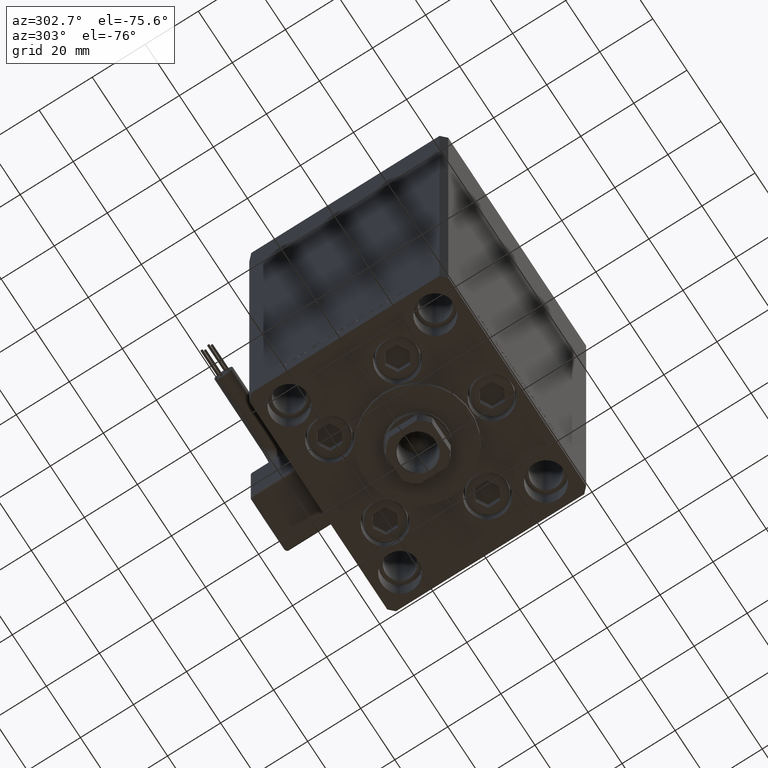
[diagram: clean part render]
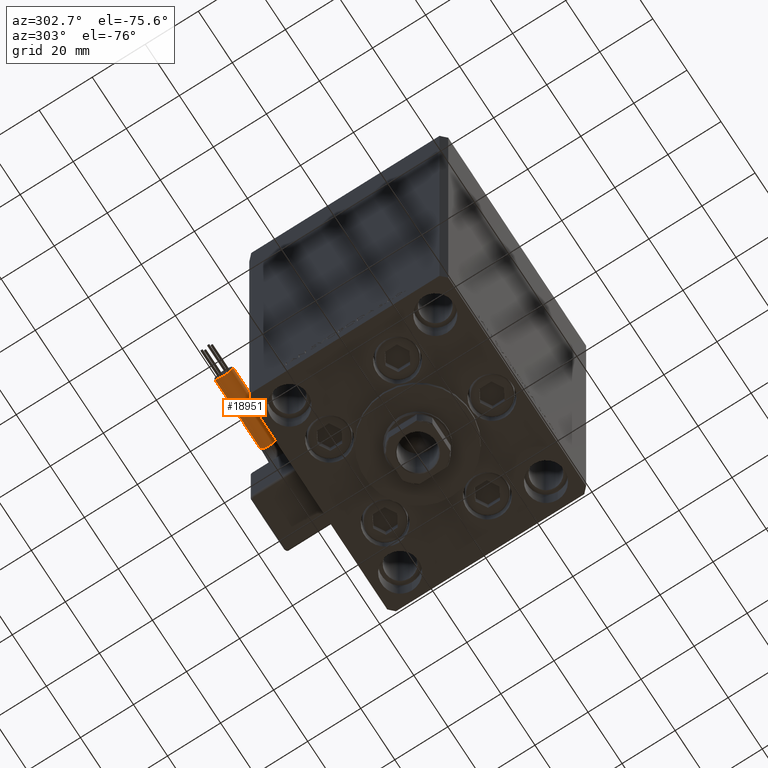
[diagram: same view with one face highlighted and labeled with its STEP entity id]
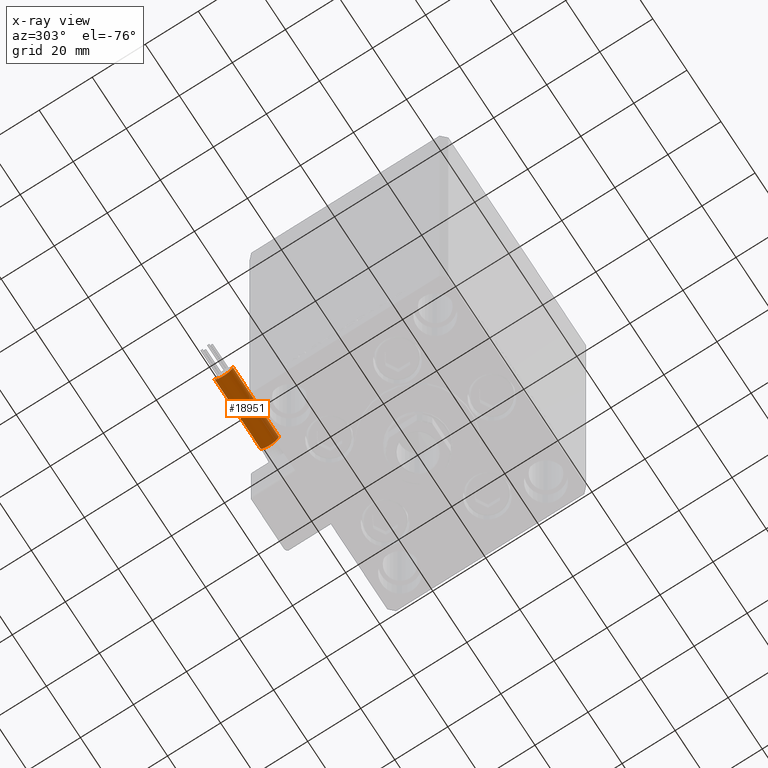
[diagram: x-ray of the same camera — body ghosted, the highlighted face saturated]
A machine part, auxiliary view. The second image highlights one B-rep face of the part: STEP entity #18951.
The next image is the same camera in x-ray: the body ghosted, the highlighted face saturated — about 14% of this face is hidden behind the body in this view.
In plain terms, the highlighted cylindrical surface (edge-blend (fillet) strip) has radius 3.5 mm, axis along (-1, 0, -0).
Its self-contained STEP definition (entity closure, byte-faithful):
#959 = AXIS2_PLACEMENT_3D ( 'NONE', #40817, #40043, #32887 ) ;
#1960 = DIRECTION ( 'NONE',  ( 0.000000000000000000, 0.000000000000000000, -1.000000000000000000 ) ) ;
#3106 = CIRCLE ( 'NONE', #37656, 3.500000000000003109 ) ;
#3868 = AXIS2_PLACEMENT_3D ( 'NONE', #12561, #35788, #8602 ) ;
#3885 = ORIENTED_EDGE ( 'NONE', *, *, #19138, .T. ) ;
#3950 = AXIS2_PLACEMENT_3D ( 'NONE', #43984, #12554, #4374 ) ;
#4374 = DIRECTION ( 'NONE',  ( -4.956352788505158337E-16, -1.000000000000000000, 0.000000000000000000 ) ) ;
#5103 = EDGE_CURVE ( 'NONE', #25041, #26608, #46012, .T. ) ;
#8602 = DIRECTION ( 'NONE',  ( 0.000000000000000000, 0.000000000000000000, -1.000000000000000000 ) ) ;
#9837 = CARTESIAN_POINT ( 'NONE',  ( 13.79999999999999716, 38.50000000000000000, -65.00000000000000000 ) ) ;
#10617 = CIRCLE ( 'NONE', #3868, 3.500000000000003109 ) ;
#11047 = CARTESIAN_POINT ( 'NONE',  ( 40.80000000000000426, 45.50000000000000711, -65.00000000000000000 ) ) ;
#11241 = VERTEX_POINT ( 'NONE', #51160 ) ;
#11345 = EDGE_LOOP ( 'NONE', ( #37944, #17804, #3885, #45497, #40441 ) ) ;
#11774 = FACE_OUTER_BOUND ( 'NONE', #11345, .T. ) ;
#12554 = DIRECTION ( 'NONE',  ( 1.000000000000000000, -2.599999999999999847E-16, 2.220446049250000002E-16 ) ) ;
#12561 = CARTESIAN_POINT ( 'NONE',  ( 13.79999999999999893, 42.00000000000000000, -65.00000000000000000 ) ) ;
#17804 = ORIENTED_EDGE ( 'NONE', *, *, #19737, .T. ) ;
#18071 = CARTESIAN_POINT ( 'NONE',  ( 13.79999999999999893, 42.00000000000000000, -65.00000000000000000 ) ) ;
#18547 = CARTESIAN_POINT ( 'NONE',  ( 13.80000000000000071, 45.50000000000000711, -65.00000000000000000 ) ) ;
#18738 = VERTEX_POINT ( 'NONE', #26300 ) ;
#18951 = ADVANCED_FACE ( 'NONE', ( #11774 ), #27860, .T. ) ;
#19138 = EDGE_CURVE ( 'NONE', #11241, #18738, #3106, .T. ) ;
#19659 = VERTEX_POINT ( 'NONE', #47684 ) ;
#19737 = EDGE_CURVE ( 'NONE', #25041, #11241, #10617, .T. ) ;
#25041 = VERTEX_POINT ( 'NONE', #46710 ) ;
#26231 = CIRCLE ( 'NONE', #959, 3.500000000000003109 ) ;
#26300 = CARTESIAN_POINT ( 'NONE',  ( 13.79999999999999893, 38.50000000000000000, -65.00000000000000000 ) ) ;
#26608 = VERTEX_POINT ( 'NONE', #11047 ) ;
#27860 = CYLINDRICAL_SURFACE ( 'NONE', #3950, 3.500000000000003109 ) ;
#29898 = LINE ( 'NONE', #9837, #33877 ) ;
#32887 = DIRECTION ( 'NONE',  ( 0.000000000000000000, 0.000000000000000000, -1.000000000000000000 ) ) ;
#33877 = VECTOR ( 'NONE', #38348, 1000.000000000000000 ) ;
#34329 = VECTOR ( 'NONE', #50246, 1000.000000000000000 ) ;
#35788 = DIRECTION ( 'NONE',  ( 1.000000000000000000, 0.000000000000000000, 2.220446049250000002E-16 ) ) ;
#37656 = AXIS2_PLACEMENT_3D ( 'NONE', #18071, #50816, #1960 ) ;
#37944 = ORIENTED_EDGE ( 'NONE', *, *, #5103, .F. ) ;
#38348 = DIRECTION ( 'NONE',  ( 1.000000000000000000, -2.599999999999999847E-16, 2.220446049250000002E-16 ) ) ;
#40043 = DIRECTION ( 'NONE',  ( 1.000000000000000000, 0.000000000000000000, 2.220446049250000002E-16 ) ) ;
#40441 = ORIENTED_EDGE ( 'NONE', *, *, #45363, .F. ) ;
#40817 = CARTESIAN_POINT ( 'NONE',  ( 40.80000000000000426, 42.00000000000000000, -65.00000000000000000 ) ) ;
#43984 = CARTESIAN_POINT ( 'NONE',  ( 13.79999999999999893, 42.00000000000000000, -65.00000000000000000 ) ) ;
#45363 = EDGE_CURVE ( 'NONE', #26608, #19659, #26231, .T. ) ;
#45497 = ORIENTED_EDGE ( 'NONE', *, *, #47378, .T. ) ;
#46012 = LINE ( 'NONE', #18547, #34329 ) ;
#46710 = CARTESIAN_POINT ( 'NONE',  ( 13.79999999999999893, 45.50000000000000711, -65.00000000000000000 ) ) ;
#47378 = EDGE_CURVE ( 'NONE', #18738, #19659, #29898, .T. ) ;
#47684 = CARTESIAN_POINT ( 'NONE',  ( 40.80000000000000426, 38.50000000000000000, -65.00000000000000000 ) ) ;
#50246 = DIRECTION ( 'NONE',  ( 1.000000000000000000, -2.599999999999999847E-16, 2.220446049250000002E-16 ) ) ;
#50816 = DIRECTION ( 'NONE',  ( 1.000000000000000000, 0.000000000000000000, 2.220446049250000002E-16 ) ) ;
#51160 = CARTESIAN_POINT ( 'NONE',  ( 13.79999999999999893, 41.99999999999999289, -61.50000000000000000 ) ) ;